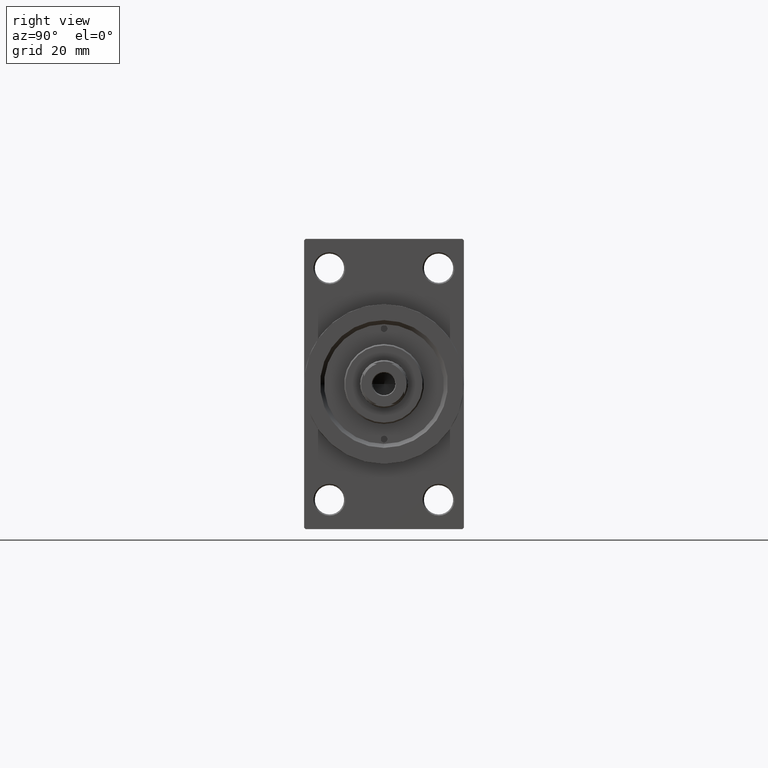
[diagram: clean part render]
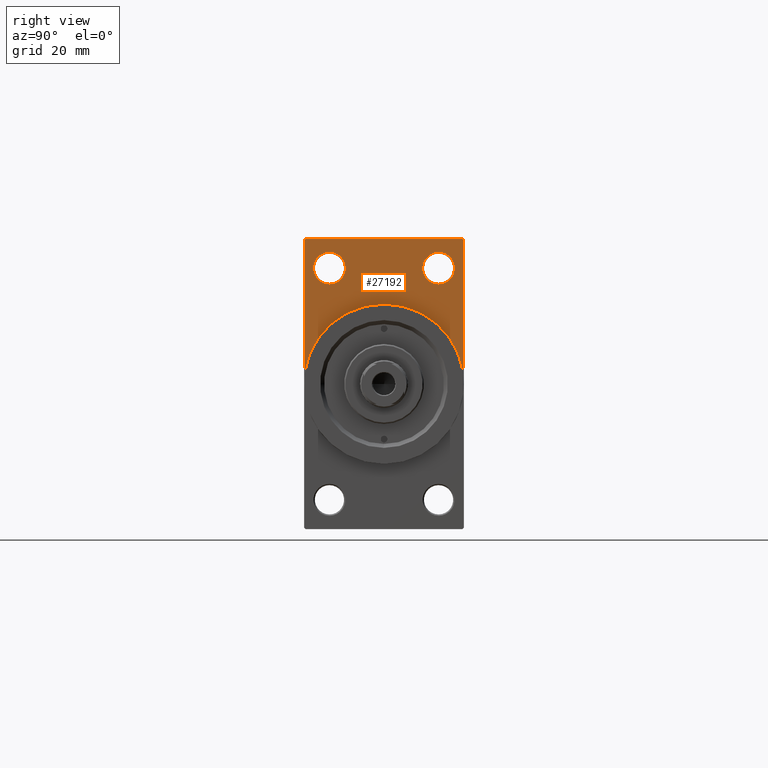
[diagram: same view with one face highlighted and labeled with its STEP entity id]
A machine part, right view. The second image highlights one B-rep face of the part: STEP entity #27192.
In plain terms, the highlighted planar face has unit normal (-1, 0, 0).
Its self-contained STEP definition (entity closure, byte-faithful):
#74 = ORIENTED_EDGE ( 'NONE', *, *, #37678, .F. ) ;
#1224 = CARTESIAN_POINT ( 'NONE',  ( 198.0000000000000000, 0.000000000000000000, 30.00000000000000000 ) ) ;
#1714 = CARTESIAN_POINT ( 'NONE',  ( 198.0000000000000000, 29.99999999999999645, 54.49999999999999289 ) ) ;
#1755 = ORIENTED_EDGE ( 'NONE', *, *, #17377, .T. ) ;
#1986 = VECTOR ( 'NONE', #27123, 1000.000000000000114 ) ;
#2142 = CARTESIAN_POINT ( 'NONE',  ( 198.0000000000000000, -29.49999999999997513, 54.50000000000000000 ) ) ;
#2239 = VECTOR ( 'NONE', #34535, 1000.000000000000000 ) ;
#2403 = LINE ( 'NONE', #20623, #29840 ) ;
#2575 = EDGE_CURVE ( 'NONE', #6196, #15965, #41436, .T. ) ;
#2729 = DIRECTION ( 'NONE',  ( 0.000000000000000000, 0.000000000000000000, -1.000000000000000000 ) ) ;
#3017 = DIRECTION ( 'NONE',  ( 1.000000000000000000, 0.000000000000000000, 0.000000000000000000 ) ) ;
#3204 = CARTESIAN_POINT ( 'NONE',  ( 198.0000000000000000, 0.000000000000000000, 0.000000000000000000 ) ) ;
#3253 = EDGE_LOOP ( 'NONE', ( #21315, #6837, #42895, #26252, #16364, #74, #41123 ) ) ;
#3746 = VERTEX_POINT ( 'NONE', #1224 ) ;
#3829 = EDGE_CURVE ( 'NONE', #18529, #34334, #2403, .T. ) ;
#4315 = CARTESIAN_POINT ( 'NONE',  ( 198.0000000000000000, -20.50000000000000000, 43.50000000000000000 ) ) ;
#4492 = PLANE ( 'NONE',  #15064 ) ;
#5654 = EDGE_CURVE ( 'NONE', #34334, #30842, #13979, .T. ) ;
#5702 = CIRCLE ( 'NONE', #38651, 30.00000000000000000 ) ;
#6196 = VERTEX_POINT ( 'NONE', #42196 ) ;
#6208 = CARTESIAN_POINT ( 'NONE',  ( 198.0000000000000000, -20.50000000000000000, 49.50000000000002842 ) ) ;
#6288 = CIRCLE ( 'NONE', #20088, 30.00000000000000000 ) ;
#6837 = ORIENTED_EDGE ( 'NONE', *, *, #3829, .T. ) ;
#7034 = DIRECTION ( 'NONE',  ( 1.000000000000000000, 0.000000000000000000, 0.000000000000000000 ) ) ;
#7048 = CARTESIAN_POINT ( 'NONE',  ( 198.0000000000000000, 29.99999999999999645, 53.99999999999999289 ) ) ;
#7455 = AXIS2_PLACEMENT_3D ( 'NONE', #20919, #31459, #34830 ) ;
#7859 = CARTESIAN_POINT ( 'NONE',  ( 198.0000000000000000, 0.000000000000000000, 0.000000000000000000 ) ) ;
#9236 = EDGE_CURVE ( 'NONE', #3746, #30842, #6288, .T. ) ;
#10170 = DIRECTION ( 'NONE',  ( 0.000000000000000000, 0.000000000000000000, 1.000000000000000000 ) ) ;
#11759 = AXIS2_PLACEMENT_3D ( 'NONE', #47336, #39186, #43262 ) ;
#12477 = CARTESIAN_POINT ( 'NONE',  ( 198.0000000000000000, 29.99999999999999645, 54.49999999999999289 ) ) ;
#12497 = LINE ( 'NONE', #1714, #24993 ) ;
#13272 = VERTEX_POINT ( 'NONE', #13721 ) ;
#13584 = CIRCLE ( 'NONE', #7455, 6.000000000000032863 ) ;
#13721 = CARTESIAN_POINT ( 'NONE',  ( 198.0000000000000000, -20.50000000000000000, 37.49999999999996447 ) ) ;
#13979 = LINE ( 'NONE', #28609, #39867 ) ;
#15064 = AXIS2_PLACEMENT_3D ( 'NONE', #7859, #43630, #40039 ) ;
#15916 = EDGE_LOOP ( 'NONE', ( #46401, #1755 ) ) ;
#15965 = VERTEX_POINT ( 'NONE', #28481 ) ;
#16324 = LINE ( 'NONE', #30951, #1986 ) ;
#16364 = ORIENTED_EDGE ( 'NONE', *, *, #22412, .F. ) ;
#17377 = EDGE_CURVE ( 'NONE', #15965, #6196, #32435, .T. ) ;
#17888 = DIRECTION ( 'NONE',  ( 0.000000000000000000, 0.000000000000000000, -1.000000000000000000 ) ) ;
#18529 = VERTEX_POINT ( 'NONE', #2142 ) ;
#18810 = ORIENTED_EDGE ( 'NONE', *, *, #29017, .T. ) ;
#19075 = CARTESIAN_POINT ( 'NONE',  ( 198.0000000000000000, 30.00000000000000000, 0.000000000000000000 ) ) ;
#20088 = AXIS2_PLACEMENT_3D ( 'NONE', #3204, #7034, #2729 ) ;
#20262 = AXIS2_PLACEMENT_3D ( 'NONE', #4315, #22553, #30443 ) ;
#20623 = CARTESIAN_POINT ( 'NONE',  ( 198.0000000000000000, -30.00000000000000000, 53.99999999999997158 ) ) ;
#20919 = CARTESIAN_POINT ( 'NONE',  ( 198.0000000000000000, -20.50000000000000000, 43.50000000000000000 ) ) ;
#21315 = ORIENTED_EDGE ( 'NONE', *, *, #25933, .T. ) ;
#22412 = EDGE_CURVE ( 'NONE', #28511, #3746, #5702, .T. ) ;
#22553 = DIRECTION ( 'NONE',  ( -1.000000000000000000, 0.000000000000000000, -0.000000000000000000 ) ) ;
#23134 = EDGE_CURVE ( 'NONE', #13272, #27068, #35615, .T. ) ;
#23703 = VERTEX_POINT ( 'NONE', #7048 ) ;
#24993 = VECTOR ( 'NONE', #37926, 1000.000000000000000 ) ;
#25396 = FACE_BOUND ( 'NONE', #15916, .T. ) ;
#25933 = EDGE_CURVE ( 'NONE', #43794, #18529, #12497, .T. ) ;
#25935 = EDGE_CURVE ( 'NONE', #23703, #43794, #16324, .T. ) ;
#26252 = ORIENTED_EDGE ( 'NONE', *, *, #9236, .F. ) ;
#27068 = VERTEX_POINT ( 'NONE', #6208 ) ;
#27123 = DIRECTION ( 'NONE',  ( 0.000000000000000000, -0.7071067811865474617, 0.7071067811865474617 ) ) ;
#27192 = ADVANCED_FACE ( 'NONE', ( #40734, #25396, #36658 ), #4492, .F. ) ;
#28481 = CARTESIAN_POINT ( 'NONE',  ( 198.0000000000000000, 20.50000000000000000, 49.50000000000002842 ) ) ;
#28511 = VERTEX_POINT ( 'NONE', #19075 ) ;
#28609 = CARTESIAN_POINT ( 'NONE',  ( 198.0000000000000000, -30.00000000000000000, 54.50000000000000000 ) ) ;
#29017 = EDGE_CURVE ( 'NONE', #27068, #13272, #13584, .T. ) ;
#29315 = DIRECTION ( 'NONE',  ( 0.000000000000000000, 0.000000000000000000, -1.000000000000000000 ) ) ;
#29840 = VECTOR ( 'NONE', #38150, 1000.000000000000114 ) ;
#30345 = CARTESIAN_POINT ( 'NONE',  ( 198.0000000000000000, -30.00000000000000000, 53.99999999999997158 ) ) ;
#30443 = DIRECTION ( 'NONE',  ( 0.000000000000000000, 0.000000000000000000, 1.000000000000000000 ) ) ;
#30458 = LINE ( 'NONE', #12477, #2239 ) ;
#30842 = VERTEX_POINT ( 'NONE', #46140 ) ;
#30951 = CARTESIAN_POINT ( 'NONE',  ( 198.0000000000000000, 29.49999999999999645, 54.49999999999999289 ) ) ;
#31459 = DIRECTION ( 'NONE',  ( -1.000000000000000000, 0.000000000000000000, -0.000000000000000000 ) ) ;
#32435 = CIRCLE ( 'NONE', #11759, 6.000000000000032863 ) ;
#33314 = ORIENTED_EDGE ( 'NONE', *, *, #23134, .T. ) ;
#34334 = VERTEX_POINT ( 'NONE', #30345 ) ;
#34535 = DIRECTION ( 'NONE',  ( 0.000000000000000000, 0.000000000000000000, -1.000000000000000000 ) ) ;
#34830 = DIRECTION ( 'NONE',  ( 0.000000000000000000, 0.000000000000000000, 1.000000000000000000 ) ) ;
#35615 = CIRCLE ( 'NONE', #20262, 6.000000000000032863 ) ;
#36658 = FACE_OUTER_BOUND ( 'NONE', #3253, .T. ) ;
#37489 = AXIS2_PLACEMENT_3D ( 'NONE', #38736, #39208, #10170 ) ;
#37678 = EDGE_CURVE ( 'NONE', #23703, #28511, #30458, .T. ) ;
#37926 = DIRECTION ( 'NONE',  ( 0.000000000000000000, -1.000000000000000000, 1.156482317317871478E-16 ) ) ;
#38150 = DIRECTION ( 'NONE',  ( -0.000000000000000000, -0.7071067811865451302, -0.7071067811865500152 ) ) ;
#38651 = AXIS2_PLACEMENT_3D ( 'NONE', #39971, #3017, #17888 ) ;
#38736 = CARTESIAN_POINT ( 'NONE',  ( 198.0000000000000000, 20.50000000000000000, 43.50000000000000000 ) ) ;
#39186 = DIRECTION ( 'NONE',  ( -1.000000000000000000, 0.000000000000000000, -0.000000000000000000 ) ) ;
#39208 = DIRECTION ( 'NONE',  ( -1.000000000000000000, 0.000000000000000000, -0.000000000000000000 ) ) ;
#39867 = VECTOR ( 'NONE', #29315, 1000.000000000000000 ) ;
#39971 = CARTESIAN_POINT ( 'NONE',  ( 198.0000000000000000, 0.000000000000000000, 0.000000000000000000 ) ) ;
#40039 = DIRECTION ( 'NONE',  ( -0.000000000000000000, 0.000000000000000000, 1.000000000000000000 ) ) ;
#40734 = FACE_BOUND ( 'NONE', #41361, .T. ) ;
#41123 = ORIENTED_EDGE ( 'NONE', *, *, #25935, .T. ) ;
#41361 = EDGE_LOOP ( 'NONE', ( #33314, #18810 ) ) ;
#41436 = CIRCLE ( 'NONE', #37489, 6.000000000000032863 ) ;
#42196 = CARTESIAN_POINT ( 'NONE',  ( 198.0000000000000000, 20.50000000000000000, 37.49999999999996447 ) ) ;
#42895 = ORIENTED_EDGE ( 'NONE', *, *, #5654, .T. ) ;
#43262 = DIRECTION ( 'NONE',  ( 0.000000000000000000, 0.000000000000000000, 1.000000000000000000 ) ) ;
#43630 = DIRECTION ( 'NONE',  ( -1.000000000000000000, 0.000000000000000000, -0.000000000000000000 ) ) ;
#43794 = VERTEX_POINT ( 'NONE', #47006 ) ;
#46140 = CARTESIAN_POINT ( 'NONE',  ( 198.0000000000000000, -30.00000000000000000, 0.000000000000000000 ) ) ;
#46401 = ORIENTED_EDGE ( 'NONE', *, *, #2575, .T. ) ;
#47006 = CARTESIAN_POINT ( 'NONE',  ( 198.0000000000000000, 29.49999999999999645, 54.49999999999999289 ) ) ;
#47336 = CARTESIAN_POINT ( 'NONE',  ( 198.0000000000000000, 20.50000000000000000, 43.50000000000000000 ) ) ;